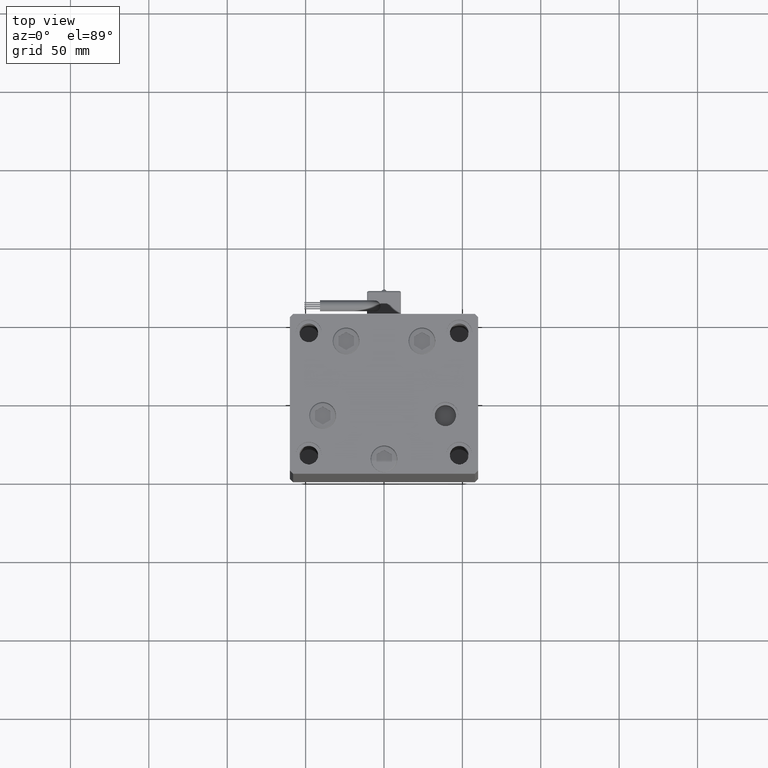
[diagram: clean part render]
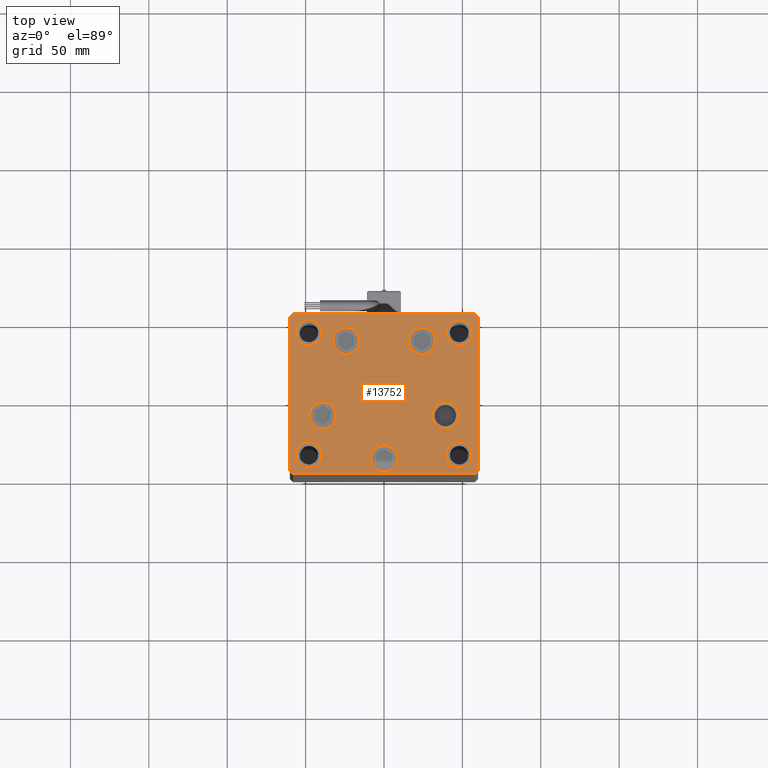
[diagram: same view with one face highlighted and labeled with its STEP entity id]
A machine part, top view. The second image highlights one B-rep face of the part: STEP entity #13752.
In plain terms, the highlighted planar face has unit normal (0, 0, 1).
Its self-contained STEP definition (entity closure, byte-faithful):
#337 = EDGE_CURVE ( 'NONE', #30882, #37567, #17397, .T. ) ;
#1118 = CARTESIAN_POINT ( 'NONE',  ( 8.500000000000005329, -41.50000000000000000, 0.000000000000000000 ) ) ;
#1128 = FACE_BOUND ( 'NONE', #48492, .T. ) ;
#1231 = DIRECTION ( 'NONE',  ( 0.000000000000000000, -0.000000000000000000, -1.000000000000000000 ) ) ;
#1652 = CIRCLE ( 'NONE', #28273, 8.249999999999992895 ) ;
#1761 = DIRECTION ( 'NONE',  ( 0.000000000000000000, -0.000000000000000000, -1.000000000000000000 ) ) ;
#1818 = DIRECTION ( 'NONE',  ( 0.000000000000000000, -0.000000000000000000, -1.000000000000000000 ) ) ;
#2125 = LINE ( 'NONE', #36607, #30465 ) ;
#2396 = DIRECTION ( 'NONE',  ( 0.000000000000000000, -1.000000000000000000, 0.000000000000000000 ) ) ;
#2534 = VERTEX_POINT ( 'NONE', #10895 ) ;
#2574 = ORIENTED_EDGE ( 'NONE', *, *, #46365, .T. ) ;
#2590 = ORIENTED_EDGE ( 'NONE', *, *, #26729, .T. ) ;
#2652 = LINE ( 'NONE', #32943, #4017 ) ;
#2750 = VERTEX_POINT ( 'NONE', #14713 ) ;
#3487 = DIRECTION ( 'NONE',  ( 1.000000000000000000, 1.196361017915039486E-16, 0.000000000000000000 ) ) ;
#3730 = CARTESIAN_POINT ( 'NONE',  ( 58.00000000000000000, -51.00000000000000711, 0.000000000000000000 ) ) ;
#3865 = CARTESIAN_POINT ( 'NONE',  ( 5.082284216461515748E-15, -41.50000000000000000, 0.000000000000000000 ) ) ;
#4017 = VECTOR ( 'NONE', #23764, 1000.000000000000000 ) ;
#4599 = AXIS2_PLACEMENT_3D ( 'NONE', #12611, #21220, #12879 ) ;
#5003 = EDGE_CURVE ( 'NONE', #2750, #38491, #1652, .T. ) ;
#5045 = ORIENTED_EDGE ( 'NONE', *, *, #5003, .F. ) ;
#5046 = CARTESIAN_POINT ( 'NONE',  ( -57.99999999999997868, -51.00000000000001421, 0.000000000000000000 ) ) ;
#5209 = EDGE_LOOP ( 'NONE', ( #30305, #50682 ) ) ;
#5298 = VERTEX_POINT ( 'NONE', #30200 ) ;
#5910 = DIRECTION ( 'NONE',  ( 1.000000000000000000, 0.000000000000000000, 0.000000000000000000 ) ) ;
#6121 = FACE_BOUND ( 'NONE', #48009, .T. ) ;
#6187 = DIRECTION ( 'NONE',  ( 0.000000000000000000, 0.000000000000000000, 1.000000000000000000 ) ) ;
#6260 = CIRCLE ( 'NONE', #16020, 8.249999999999992895 ) ;
#6272 = ORIENTED_EDGE ( 'NONE', *, *, #18679, .F. ) ;
#6275 = VERTEX_POINT ( 'NONE', #47723 ) ;
#6375 = VECTOR ( 'NONE', #11238, 1000.000000000000114 ) ;
#6607 = AXIS2_PLACEMENT_3D ( 'NONE', #37521, #41145, #28344 ) ;
#6722 = VERTEX_POINT ( 'NONE', #38796 ) ;
#6823 = LINE ( 'NONE', #41855, #35876 ) ;
#7212 = DIRECTION ( 'NONE',  ( 1.000000000000000000, 0.000000000000000000, 0.000000000000000000 ) ) ;
#7328 = AXIS2_PLACEMENT_3D ( 'NONE', #34723, #46692, #33624 ) ;
#7425 = DIRECTION ( 'NONE',  ( 0.000000000000000000, -0.000000000000000000, -1.000000000000000000 ) ) ;
#8151 = CARTESIAN_POINT ( 'NONE',  ( 39.12657522565562829, -13.83333333333332860, 0.000000000000000000 ) ) ;
#8441 = VERTEX_POINT ( 'NONE', #21288 ) ;
#8738 = VERTEX_POINT ( 'NONE', #40174 ) ;
#9294 = CARTESIAN_POINT ( 'NONE',  ( 24.19288941894911460, 33.71875000000000711, 0.000000000000000000 ) ) ;
#9746 = FACE_BOUND ( 'NONE', #52322, .T. ) ;
#9854 = CIRCLE ( 'NONE', #23158, 8.499999999999992895 ) ;
#10022 = FACE_BOUND ( 'NONE', #20207, .T. ) ;
#10212 = AXIS2_PLACEMENT_3D ( 'NONE', #23823, #7425, #40804 ) ;
#10436 = ORIENTED_EDGE ( 'NONE', *, *, #17996, .T. ) ;
#10538 = VECTOR ( 'NONE', #19416, 1000.000000000000000 ) ;
#10681 = EDGE_CURVE ( 'NONE', #31116, #30097, #6260, .T. ) ;
#10794 = DIRECTION ( 'NONE',  ( 0.7071067811865474617, -0.7071067811865474617, 0.000000000000000000 ) ) ;
#10895 = CARTESIAN_POINT ( 'NONE',  ( 30.62657522565563184, -13.83333333333332860, 0.000000000000000000 ) ) ;
#11223 = CARTESIAN_POINT ( 'NONE',  ( -39.75000000000000711, -39.00000000000000000, 0.000000000000000000 ) ) ;
#11238 = DIRECTION ( 'NONE',  ( 0.7071067811865474617, 0.7071067811865474617, 0.000000000000000000 ) ) ;
#11383 = CARTESIAN_POINT ( 'NONE',  ( 0.000000000000000000, 0.000000000000000000, 0.000000000000000000 ) ) ;
#11486 = ORIENTED_EDGE ( 'NONE', *, *, #13371, .T. ) ;
#12060 = VECTOR ( 'NONE', #10794, 1000.000000000000114 ) ;
#12115 = CIRCLE ( 'NONE', #13907, 8.500000000000000000 ) ;
#12611 = CARTESIAN_POINT ( 'NONE',  ( -48.00000000000000000, -39.00000000000000000, 0.000000000000000000 ) ) ;
#12879 = DIRECTION ( 'NONE',  ( 1.000000000000000000, 0.000000000000000000, 0.000000000000000000 ) ) ;
#13082 = EDGE_CURVE ( 'NONE', #28818, #51619, #36555, .T. ) ;
#13225 = EDGE_CURVE ( 'NONE', #44749, #28441, #24149, .T. ) ;
#13371 = EDGE_CURVE ( 'NONE', #21409, #53247, #39245, .T. ) ;
#13734 = CIRCLE ( 'NONE', #10212, 8.500000000000000000 ) ;
#13752 = ADVANCED_FACE ( 'NONE', ( #39489, #13910, #39218, #1128, #10022, #31414, #27245, #6121, #9746, #26700 ), #41413, .T. ) ;
#13835 = ORIENTED_EDGE ( 'NONE', *, *, #21126, .T. ) ;
#13866 = EDGE_CURVE ( 'NONE', #53247, #21409, #32173, .T. ) ;
#13871 = AXIS2_PLACEMENT_3D ( 'NONE', #45440, #28444, #15376 ) ;
#13907 = AXIS2_PLACEMENT_3D ( 'NONE', #9294, #1231, #23164 ) ;
#13910 = FACE_BOUND ( 'NONE', #47124, .T. ) ;
#14031 = CARTESIAN_POINT ( 'NONE',  ( 59.99999999999994316, 49.00000000000000000, 0.000000000000000000 ) ) ;
#14245 = ORIENTED_EDGE ( 'NONE', *, *, #47650, .T. ) ;
#14611 = CARTESIAN_POINT ( 'NONE',  ( -57.99999999999999289, 50.99999999999997868, 0.000000000000000000 ) ) ;
#14624 = EDGE_CURVE ( 'NONE', #30097, #31116, #31310, .T. ) ;
#14713 = CARTESIAN_POINT ( 'NONE',  ( 39.75000000000000711, 38.99999999999999289, 0.000000000000000000 ) ) ;
#14781 = DIRECTION ( 'NONE',  ( 0.000000000000000000, -0.000000000000000000, -1.000000000000000000 ) ) ;
#14799 = CARTESIAN_POINT ( 'NONE',  ( -39.12657522565562829, -13.83333333333333925, 0.000000000000000000 ) ) ;
#14871 = EDGE_LOOP ( 'NONE', ( #44645, #13835, #20723, #29586, #51798, #10436, #22714, #27886 ) ) ;
#14986 = AXIS2_PLACEMENT_3D ( 'NONE', #14799, #1761, #18716 ) ;
#15262 = AXIS2_PLACEMENT_3D ( 'NONE', #52914, #14781, #5910 ) ;
#15376 = DIRECTION ( 'NONE',  ( 1.000000000000000000, 0.000000000000000000, 0.000000000000000000 ) ) ;
#15707 = VERTEX_POINT ( 'NONE', #37888 ) ;
#16020 = AXIS2_PLACEMENT_3D ( 'NONE', #46133, #20251, #37229 ) ;
#16210 = EDGE_CURVE ( 'NONE', #27327, #8738, #2125, .T. ) ;
#16288 = ORIENTED_EDGE ( 'NONE', *, *, #10681, .F. ) ;
#16553 = VERTEX_POINT ( 'NONE', #14031 ) ;
#16652 = EDGE_CURVE ( 'NONE', #17676, #2534, #48286, .T. ) ;
#17397 = CIRCLE ( 'NONE', #13871, 8.249999999999992895 ) ;
#17676 = VERTEX_POINT ( 'NONE', #44356 ) ;
#17976 = AXIS2_PLACEMENT_3D ( 'NONE', #3865, #46680, #33615 ) ;
#17996 = EDGE_CURVE ( 'NONE', #6275, #8441, #35811, .T. ) ;
#18257 = EDGE_CURVE ( 'NONE', #37567, #30882, #33199, .T. ) ;
#18679 = EDGE_CURVE ( 'NONE', #28441, #44749, #47478, .T. ) ;
#18716 = DIRECTION ( 'NONE',  ( 1.000000000000000000, 0.000000000000000000, 0.000000000000000000 ) ) ;
#18822 = CARTESIAN_POINT ( 'NONE',  ( 39.12657522565562829, -13.83333333333332860, 0.000000000000000000 ) ) ;
#18946 = VECTOR ( 'NONE', #22675, 1000.000000000000114 ) ;
#19125 = CARTESIAN_POINT ( 'NONE',  ( -60.00000000000000000, -49.00000000000000000, 0.000000000000000000 ) ) ;
#19416 = DIRECTION ( 'NONE',  ( -0.7071067811865487940, 0.7071067811865463515, 0.000000000000000000 ) ) ;
#19802 = CARTESIAN_POINT ( 'NONE',  ( 32.69288941894911460, 33.71875000000000711, 0.000000000000000000 ) ) ;
#20207 = EDGE_LOOP ( 'NONE', ( #14245, #34226 ) ) ;
#20214 = EDGE_CURVE ( 'NONE', #8441, #27327, #39654, .T. ) ;
#20251 = DIRECTION ( 'NONE',  ( 0.000000000000000000, 0.000000000000000000, 1.000000000000000000 ) ) ;
#20514 = CARTESIAN_POINT ( 'NONE',  ( -56.24999999999999289, 39.00000000000000000, 0.000000000000000000 ) ) ;
#20723 = ORIENTED_EDGE ( 'NONE', *, *, #13082, .T. ) ;
#20976 = ORIENTED_EDGE ( 'NONE', *, *, #44726, .F. ) ;
#21126 = EDGE_CURVE ( 'NONE', #25425, #28818, #6823, .T. ) ;
#21220 = DIRECTION ( 'NONE',  ( 0.000000000000000000, 0.000000000000000000, 1.000000000000000000 ) ) ;
#21288 = CARTESIAN_POINT ( 'NONE',  ( -57.99999999999999289, 50.99999999999997868, 0.000000000000000000 ) ) ;
#21409 = VERTEX_POINT ( 'NONE', #50695 ) ;
#22675 = DIRECTION ( 'NONE',  ( -0.7071067811865451302, -0.7071067811865500152, 0.000000000000000000 ) ) ;
#22714 = ORIENTED_EDGE ( 'NONE', *, *, #20214, .T. ) ;
#22730 = CIRCLE ( 'NONE', #53856, 8.500000000000000000 ) ;
#22768 = ORIENTED_EDGE ( 'NONE', *, *, #13866, .T. ) ;
#22844 = AXIS2_PLACEMENT_3D ( 'NONE', #52409, #30137, #35142 ) ;
#23158 = AXIS2_PLACEMENT_3D ( 'NONE', #18822, #44694, #40223 ) ;
#23164 = DIRECTION ( 'NONE',  ( 1.000000000000000000, 0.000000000000000000, 0.000000000000000000 ) ) ;
#23230 = DIRECTION ( 'NONE',  ( 1.000000000000000000, 0.000000000000000000, 0.000000000000000000 ) ) ;
#23265 = CARTESIAN_POINT ( 'NONE',  ( 57.99999999999993605, 51.00000000000000711, 0.000000000000000000 ) ) ;
#23764 = DIRECTION ( 'NONE',  ( -7.080503983578803823E-16, 1.000000000000000000, 0.000000000000000000 ) ) ;
#23823 = CARTESIAN_POINT ( 'NONE',  ( -39.12657522565562829, -13.83333333333333925, 0.000000000000000000 ) ) ;
#24149 = CIRCLE ( 'NONE', #4599, 8.249999999999992895 ) ;
#24252 = AXIS2_PLACEMENT_3D ( 'NONE', #8151, #49896, #45984 ) ;
#24336 = AXIS2_PLACEMENT_3D ( 'NONE', #31749, #6187, #31482 ) ;
#24743 = CIRCLE ( 'NONE', #14986, 8.500000000000000000 ) ;
#24896 = ORIENTED_EDGE ( 'NONE', *, *, #51202, .T. ) ;
#25425 = VERTEX_POINT ( 'NONE', #5046 ) ;
#25541 = CARTESIAN_POINT ( 'NONE',  ( 15.69288941894910927, 33.71875000000000711, 0.000000000000000000 ) ) ;
#26700 = FACE_OUTER_BOUND ( 'NONE', #14871, .T. ) ;
#26729 = EDGE_CURVE ( 'NONE', #35941, #48165, #12115, .T. ) ;
#26920 = VERTEX_POINT ( 'NONE', #33988 ) ;
#27010 = VECTOR ( 'NONE', #39150, 1000.000000000000000 ) ;
#27245 = FACE_BOUND ( 'NONE', #32951, .T. ) ;
#27327 = VERTEX_POINT ( 'NONE', #47764 ) ;
#27384 = CARTESIAN_POINT ( 'NONE',  ( 24.19288941894911460, 33.71875000000000711, 0.000000000000000000 ) ) ;
#27561 = CIRCLE ( 'NONE', #47131, 8.500000000000000000 ) ;
#27886 = ORIENTED_EDGE ( 'NONE', *, *, #16210, .T. ) ;
#28273 = AXIS2_PLACEMENT_3D ( 'NONE', #39991, #32449, #48900 ) ;
#28344 = DIRECTION ( 'NONE',  ( 1.000000000000000000, 0.000000000000000000, 0.000000000000000000 ) ) ;
#28441 = VERTEX_POINT ( 'NONE', #11223 ) ;
#28444 = DIRECTION ( 'NONE',  ( 0.000000000000000000, 0.000000000000000000, 1.000000000000000000 ) ) ;
#28818 = VERTEX_POINT ( 'NONE', #34210 ) ;
#29586 = ORIENTED_EDGE ( 'NONE', *, *, #36649, .T. ) ;
#30034 = AXIS2_PLACEMENT_3D ( 'NONE', #27384, #1818, #40730 ) ;
#30097 = VERTEX_POINT ( 'NONE', #40013 ) ;
#30137 = DIRECTION ( 'NONE',  ( 0.000000000000000000, 0.000000000000000000, 1.000000000000000000 ) ) ;
#30200 = CARTESIAN_POINT ( 'NONE',  ( -47.62657522565562829, -13.83333333333333925, 0.000000000000000000 ) ) ;
#30287 = EDGE_CURVE ( 'NONE', #16553, #6275, #32476, .T. ) ;
#30305 = ORIENTED_EDGE ( 'NONE', *, *, #18257, .F. ) ;
#30465 = VECTOR ( 'NONE', #2396, 1000.000000000000000 ) ;
#30882 = VERTEX_POINT ( 'NONE', #54337 ) ;
#31116 = VERTEX_POINT ( 'NONE', #20514 ) ;
#31310 = CIRCLE ( 'NONE', #7328, 8.249999999999992895 ) ;
#31414 = FACE_BOUND ( 'NONE', #5209, .T. ) ;
#31482 = DIRECTION ( 'NONE',  ( 1.000000000000000000, 0.000000000000000000, 0.000000000000000000 ) ) ;
#31749 = CARTESIAN_POINT ( 'NONE',  ( 48.00000000000000000, -38.99999999999999289, 0.000000000000000000 ) ) ;
#31954 = DIRECTION ( 'NONE',  ( -0.000000000000000000, 0.000000000000000000, 1.000000000000000000 ) ) ;
#32173 = CIRCLE ( 'NONE', #17976, 8.500000000000000000 ) ;
#32449 = DIRECTION ( 'NONE',  ( 0.000000000000000000, 0.000000000000000000, 1.000000000000000000 ) ) ;
#32476 = LINE ( 'NONE', #49475, #10538 ) ;
#32480 = CARTESIAN_POINT ( 'NONE',  ( 60.00000000000001421, -48.99999999999999289, 0.000000000000000000 ) ) ;
#32943 = CARTESIAN_POINT ( 'NONE',  ( 60.00000000000001421, -48.99999999999999289, 0.000000000000000000 ) ) ;
#32951 = EDGE_LOOP ( 'NONE', ( #6272, #48274 ) ) ;
#33014 = AXIS2_PLACEMENT_3D ( 'NONE', #11383, #31954, #7212 ) ;
#33199 = CIRCLE ( 'NONE', #24336, 8.249999999999992895 ) ;
#33615 = DIRECTION ( 'NONE',  ( 1.000000000000000000, 0.000000000000000000, 0.000000000000000000 ) ) ;
#33624 = DIRECTION ( 'NONE',  ( 1.000000000000000000, 0.000000000000000000, 0.000000000000000000 ) ) ;
#33988 = CARTESIAN_POINT ( 'NONE',  ( -32.69288941894912170, 33.71875000000000000, 0.000000000000000000 ) ) ;
#34210 = CARTESIAN_POINT ( 'NONE',  ( 58.00000000000000000, -51.00000000000000711, 0.000000000000000000 ) ) ;
#34226 = ORIENTED_EDGE ( 'NONE', *, *, #35363, .T. ) ;
#34315 = CARTESIAN_POINT ( 'NONE',  ( -56.24999999999999289, -39.00000000000000000, 0.000000000000000000 ) ) ;
#34723 = CARTESIAN_POINT ( 'NONE',  ( -48.00000000000000000, 39.00000000000000000, 0.000000000000000000 ) ) ;
#34772 = EDGE_LOOP ( 'NONE', ( #48148, #43099 ) ) ;
#35142 = DIRECTION ( 'NONE',  ( 1.000000000000000000, 0.000000000000000000, 0.000000000000000000 ) ) ;
#35363 = EDGE_CURVE ( 'NONE', #15707, #5298, #13734, .T. ) ;
#35379 = CIRCLE ( 'NONE', #30034, 8.500000000000000000 ) ;
#35588 = EDGE_LOOP ( 'NONE', ( #24896, #46002 ) ) ;
#35811 = LINE ( 'NONE', #23265, #27010 ) ;
#35876 = VECTOR ( 'NONE', #3487, 1000.000000000000000 ) ;
#35941 = VERTEX_POINT ( 'NONE', #19802 ) ;
#36555 = LINE ( 'NONE', #3730, #6375 ) ;
#36607 = CARTESIAN_POINT ( 'NONE',  ( -60.00000000000000000, 48.99999999999995737, 0.000000000000000000 ) ) ;
#36649 = EDGE_CURVE ( 'NONE', #51619, #16553, #2652, .T. ) ;
#36918 = LINE ( 'NONE', #19125, #12060 ) ;
#37229 = DIRECTION ( 'NONE',  ( 1.000000000000000000, 0.000000000000000000, 0.000000000000000000 ) ) ;
#37521 = CARTESIAN_POINT ( 'NONE',  ( -48.00000000000000000, -39.00000000000000000, 0.000000000000000000 ) ) ;
#37567 = VERTEX_POINT ( 'NONE', #46103 ) ;
#37888 = CARTESIAN_POINT ( 'NONE',  ( -30.62657522565562829, -13.83333333333333748, 0.000000000000000000 ) ) ;
#38009 = EDGE_CURVE ( 'NONE', #8738, #25425, #36918, .T. ) ;
#38286 = EDGE_CURVE ( 'NONE', #6722, #26920, #22730, .T. ) ;
#38491 = VERTEX_POINT ( 'NONE', #54122 ) ;
#38796 = CARTESIAN_POINT ( 'NONE',  ( -15.69288941894911993, 33.71875000000000000, 0.000000000000000000 ) ) ;
#39150 = DIRECTION ( 'NONE',  ( -1.000000000000000000, -2.392722035830079958E-16, 0.000000000000000000 ) ) ;
#39218 = FACE_BOUND ( 'NONE', #34772, .T. ) ;
#39245 = CIRCLE ( 'NONE', #15262, 8.500000000000000000 ) ;
#39489 = FACE_BOUND ( 'NONE', #35588, .T. ) ;
#39654 = LINE ( 'NONE', #14611, #18946 ) ;
#39991 = CARTESIAN_POINT ( 'NONE',  ( 48.00000000000000000, 38.99999999999999289, 0.000000000000000000 ) ) ;
#40013 = CARTESIAN_POINT ( 'NONE',  ( -39.75000000000000711, 39.00000000000000000, 0.000000000000000000 ) ) ;
#40174 = CARTESIAN_POINT ( 'NONE',  ( -60.00000000000000000, -49.00000000000000000, 0.000000000000000000 ) ) ;
#40223 = DIRECTION ( 'NONE',  ( 1.000000000000000000, 0.000000000000000000, 0.000000000000000000 ) ) ;
#40474 = DIRECTION ( 'NONE',  ( 0.000000000000000000, -0.000000000000000000, -1.000000000000000000 ) ) ;
#40730 = DIRECTION ( 'NONE',  ( 1.000000000000000000, 0.000000000000000000, 0.000000000000000000 ) ) ;
#40804 = DIRECTION ( 'NONE',  ( 1.000000000000000000, 0.000000000000000000, 0.000000000000000000 ) ) ;
#41145 = DIRECTION ( 'NONE',  ( 0.000000000000000000, 0.000000000000000000, 1.000000000000000000 ) ) ;
#41413 = PLANE ( 'NONE',  #33014 ) ;
#41855 = CARTESIAN_POINT ( 'NONE',  ( -57.99999999999997868, -51.00000000000001421, 0.000000000000000000 ) ) ;
#42617 = DIRECTION ( 'NONE',  ( 0.000000000000000000, -0.000000000000000000, -1.000000000000000000 ) ) ;
#42892 = DIRECTION ( 'NONE',  ( 1.000000000000000000, 0.000000000000000000, 0.000000000000000000 ) ) ;
#43099 = ORIENTED_EDGE ( 'NONE', *, *, #16652, .T. ) ;
#44356 = CARTESIAN_POINT ( 'NONE',  ( 47.62657522565562118, -13.83333333333332682, 0.000000000000000000 ) ) ;
#44645 = ORIENTED_EDGE ( 'NONE', *, *, #38009, .T. ) ;
#44694 = DIRECTION ( 'NONE',  ( 0.000000000000000000, -0.000000000000000000, -1.000000000000000000 ) ) ;
#44726 = EDGE_CURVE ( 'NONE', #38491, #2750, #49527, .T. ) ;
#44749 = VERTEX_POINT ( 'NONE', #34315 ) ;
#45440 = CARTESIAN_POINT ( 'NONE',  ( 48.00000000000000000, -38.99999999999999289, 0.000000000000000000 ) ) ;
#45984 = DIRECTION ( 'NONE',  ( 1.000000000000000000, 0.000000000000000000, 0.000000000000000000 ) ) ;
#46002 = ORIENTED_EDGE ( 'NONE', *, *, #38286, .T. ) ;
#46103 = CARTESIAN_POINT ( 'NONE',  ( 56.24999999999999289, -38.99999999999999289, 0.000000000000000000 ) ) ;
#46133 = CARTESIAN_POINT ( 'NONE',  ( -48.00000000000000000, 39.00000000000000000, 0.000000000000000000 ) ) ;
#46365 = EDGE_CURVE ( 'NONE', #48165, #35941, #35379, .T. ) ;
#46680 = DIRECTION ( 'NONE',  ( 0.000000000000000000, -0.000000000000000000, -1.000000000000000000 ) ) ;
#46692 = DIRECTION ( 'NONE',  ( 0.000000000000000000, 0.000000000000000000, 1.000000000000000000 ) ) ;
#47124 = EDGE_LOOP ( 'NONE', ( #2574, #2590 ) ) ;
#47131 = AXIS2_PLACEMENT_3D ( 'NONE', #51523, #42617, #42892 ) ;
#47478 = CIRCLE ( 'NONE', #6607, 8.249999999999992895 ) ;
#47650 = EDGE_CURVE ( 'NONE', #5298, #15707, #24743, .T. ) ;
#47723 = CARTESIAN_POINT ( 'NONE',  ( 57.99999999999993605, 51.00000000000000711, 0.000000000000000000 ) ) ;
#47764 = CARTESIAN_POINT ( 'NONE',  ( -60.00000000000000000, 48.99999999999995737, 0.000000000000000000 ) ) ;
#48009 = EDGE_LOOP ( 'NONE', ( #53041, #16288 ) ) ;
#48148 = ORIENTED_EDGE ( 'NONE', *, *, #52746, .T. ) ;
#48165 = VERTEX_POINT ( 'NONE', #25541 ) ;
#48274 = ORIENTED_EDGE ( 'NONE', *, *, #13225, .F. ) ;
#48286 = CIRCLE ( 'NONE', #24252, 8.499999999999992895 ) ;
#48492 = EDGE_LOOP ( 'NONE', ( #11486, #22768 ) ) ;
#48900 = DIRECTION ( 'NONE',  ( 1.000000000000000000, 0.000000000000000000, 0.000000000000000000 ) ) ;
#49475 = CARTESIAN_POINT ( 'NONE',  ( 59.99999999999994316, 49.00000000000000000, 0.000000000000000000 ) ) ;
#49527 = CIRCLE ( 'NONE', #22844, 8.249999999999992895 ) ;
#49896 = DIRECTION ( 'NONE',  ( 0.000000000000000000, -0.000000000000000000, -1.000000000000000000 ) ) ;
#50682 = ORIENTED_EDGE ( 'NONE', *, *, #337, .F. ) ;
#50695 = CARTESIAN_POINT ( 'NONE',  ( -8.499999999999994671, -41.50000000000000000, 0.000000000000000000 ) ) ;
#51202 = EDGE_CURVE ( 'NONE', #26920, #6722, #27561, .T. ) ;
#51523 = CARTESIAN_POINT ( 'NONE',  ( -24.19288941894912170, 33.71875000000000000, 0.000000000000000000 ) ) ;
#51619 = VERTEX_POINT ( 'NONE', #32480 ) ;
#51798 = ORIENTED_EDGE ( 'NONE', *, *, #30287, .T. ) ;
#52322 = EDGE_LOOP ( 'NONE', ( #20976, #5045 ) ) ;
#52409 = CARTESIAN_POINT ( 'NONE',  ( 48.00000000000000000, 38.99999999999999289, 0.000000000000000000 ) ) ;
#52746 = EDGE_CURVE ( 'NONE', #2534, #17676, #9854, .T. ) ;
#52914 = CARTESIAN_POINT ( 'NONE',  ( 5.082284216461515748E-15, -41.50000000000000000, 0.000000000000000000 ) ) ;
#53019 = CARTESIAN_POINT ( 'NONE',  ( -24.19288941894912170, 33.71875000000000000, 0.000000000000000000 ) ) ;
#53041 = ORIENTED_EDGE ( 'NONE', *, *, #14624, .F. ) ;
#53247 = VERTEX_POINT ( 'NONE', #1118 ) ;
#53856 = AXIS2_PLACEMENT_3D ( 'NONE', #53019, #40474, #23230 ) ;
#54122 = CARTESIAN_POINT ( 'NONE',  ( 56.24999999999999289, 38.99999999999999289, 0.000000000000000000 ) ) ;
#54337 = CARTESIAN_POINT ( 'NONE',  ( 39.75000000000000711, -38.99999999999999289, 0.000000000000000000 ) ) ;